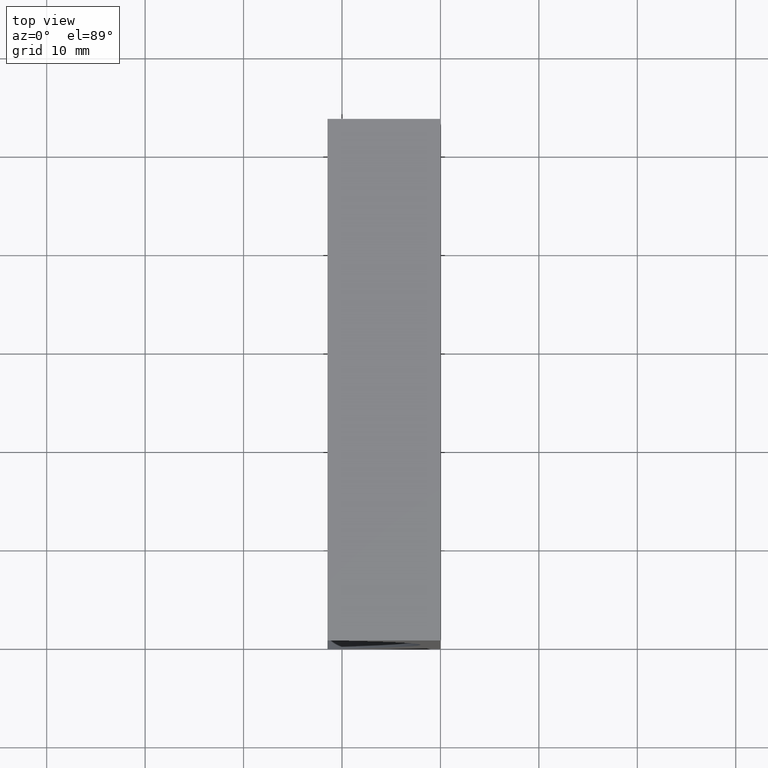
[diagram: clean part render]
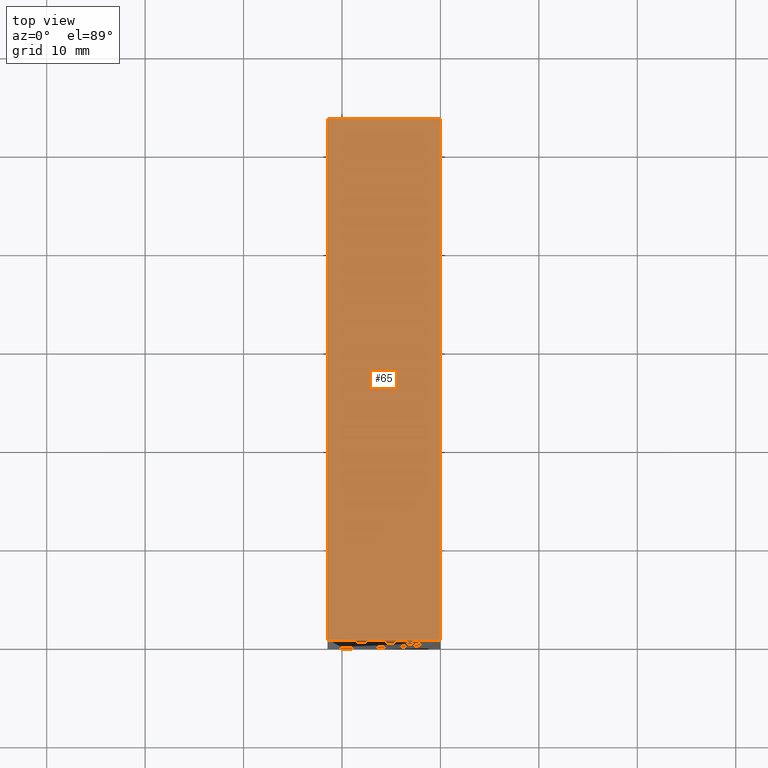
[diagram: same view with one face highlighted and labeled with its STEP entity id]
A machine part, top view. The second image highlights one B-rep face of the part: STEP entity #65.
In plain terms, the highlighted planar face has unit normal (0, 0, -1).
Its self-contained STEP definition (entity closure, byte-faithful):
#1 = DIRECTION ( 'NONE',  ( 1.000000000000000000, -0.0000000000000000000, -0.0000000000000000000 ) ) ;
#3 = ORIENTED_EDGE ( 'NONE', *, *, #184, .F. ) ;
#10 = CARTESIAN_POINT ( 'NONE',  ( 3.110602869834276900E-015, 0.0000000000000000000, 50.79999999999999700 ) ) ;
#13 = ORIENTED_EDGE ( 'NONE', *, *, #124, .T. ) ;
#18 = LINE ( 'NONE', #98, #23 ) ;
#19 = ORIENTED_EDGE ( 'NONE', *, *, #21, .F. ) ;
#21 = EDGE_CURVE ( 'NONE', #136, #50, #18, .T. ) ;
#23 = VECTOR ( 'NONE', #1, 1000.000000000000000 ) ;
#24 = DIRECTION ( 'NONE',  ( -0.0000000000000000000, -1.000000000000000000, -0.0000000000000000000 ) ) ;
#30 = LINE ( 'NONE', #73, #83 ) ;
#34 = LINE ( 'NONE', #54, #115 ) ;
#38 = CARTESIAN_POINT ( 'NONE',  ( 3.110602869834276900E-015, 53.00000000000000000, 50.79999999999999700 ) ) ;
#40 = DIRECTION ( 'NONE',  ( -1.000000000000000000, 0.0000000000000000000, -0.0000000000000000000 ) ) ;
#41 = EDGE_LOOP ( 'NONE', ( #13, #3, #19, #52 ) ) ;
#50 = VERTEX_POINT ( 'NONE', #150 ) ;
#52 = ORIENTED_EDGE ( 'NONE', *, *, #137, .T. ) ;
#54 = CARTESIAN_POINT ( 'NONE',  ( -11.46946983090826900, 53.00000000000000000, 50.79999999999999700 ) ) ;
#65 = ADVANCED_FACE ( 'NONE', ( #99 ), #140, .F. ) ;
#66 = VECTOR ( 'NONE', #134, 1000.000000000000000 ) ;
#73 = CARTESIAN_POINT ( 'NONE',  ( 3.110602869834276900E-015, 53.00000000000000000, 50.79999999999999700 ) ) ;
#77 = DIRECTION ( 'NONE',  ( -0.0000000000000000000, -1.000000000000000000, -0.0000000000000000000 ) ) ;
#83 = VECTOR ( 'NONE', #77, 1000.000000000000000 ) ;
#98 = CARTESIAN_POINT ( 'NONE',  ( 3.110602869834276900E-015, 53.00000000000000000, 50.79999999999999700 ) ) ;
#99 = FACE_OUTER_BOUND ( 'NONE', #41, .T. ) ;
#100 = CARTESIAN_POINT ( 'NONE',  ( 3.110602869834276900E-015, 0.0000000000000000000, 50.79999999999999700 ) ) ;
#110 = LINE ( 'NONE', #10, #66 ) ;
#115 = VECTOR ( 'NONE', #24, 1000.000000000000000 ) ;
#124 = EDGE_CURVE ( 'NONE', #142, #195, #110, .T. ) ;
#134 = DIRECTION ( 'NONE',  ( 1.000000000000000000, -0.0000000000000000000, -0.0000000000000000000 ) ) ;
#135 = DIRECTION ( 'NONE',  ( 0.0000000000000000000, 0.0000000000000000000, -1.000000000000000000 ) ) ;
#136 = VERTEX_POINT ( 'NONE', #167 ) ;
#137 = EDGE_CURVE ( 'NONE', #136, #142, #34, .T. ) ;
#140 = PLANE ( 'NONE',  #155 ) ;
#142 = VERTEX_POINT ( 'NONE', #186 ) ;
#150 = CARTESIAN_POINT ( 'NONE',  ( 3.110602869834276900E-015, 53.00000000000000000, 50.79999999999999700 ) ) ;
#155 = AXIS2_PLACEMENT_3D ( 'NONE', #38, #135, #40 ) ;
#167 = CARTESIAN_POINT ( 'NONE',  ( -11.46946983090826900, 53.00000000000000000, 50.79999999999999700 ) ) ;
#184 = EDGE_CURVE ( 'NONE', #50, #195, #30, .T. ) ;
#186 = CARTESIAN_POINT ( 'NONE',  ( -11.46946983090826900, 0.0000000000000000000, 50.79999999999999700 ) ) ;
#195 = VERTEX_POINT ( 'NONE', #100 ) ;